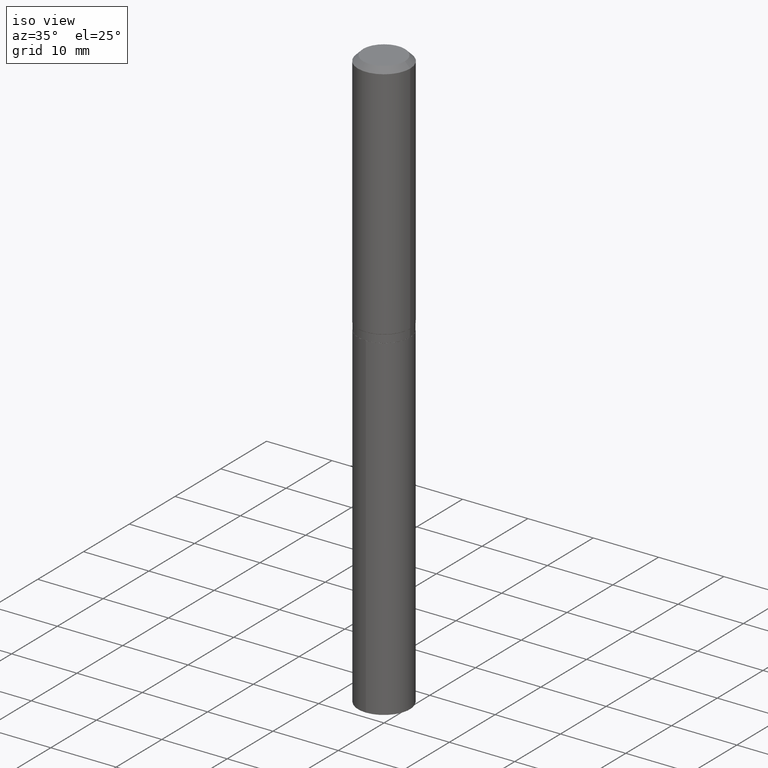
[diagram: clean part render]
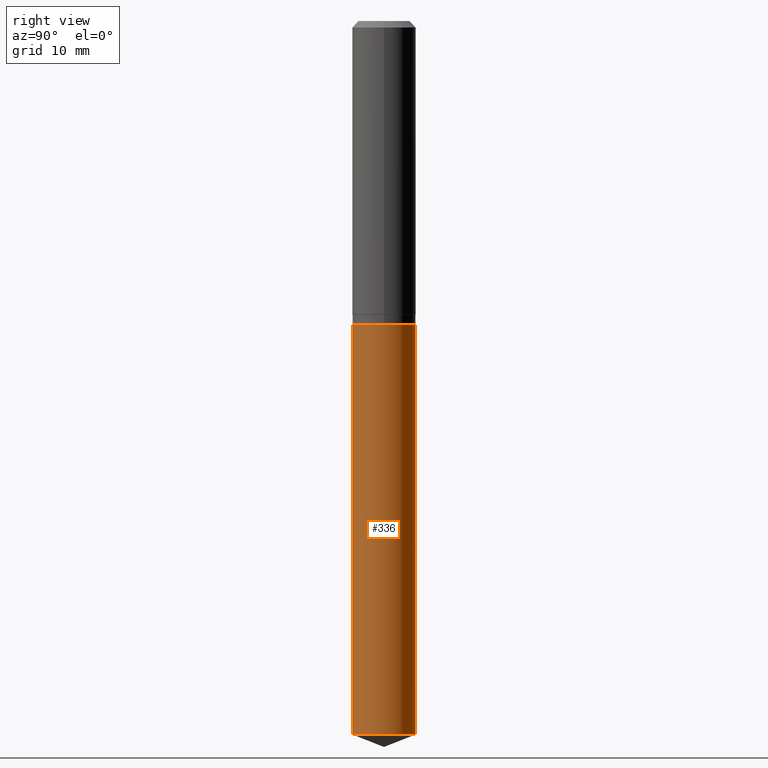
[diagram: tour spotlight — one face highlighted and labeled with its STEP entity id]
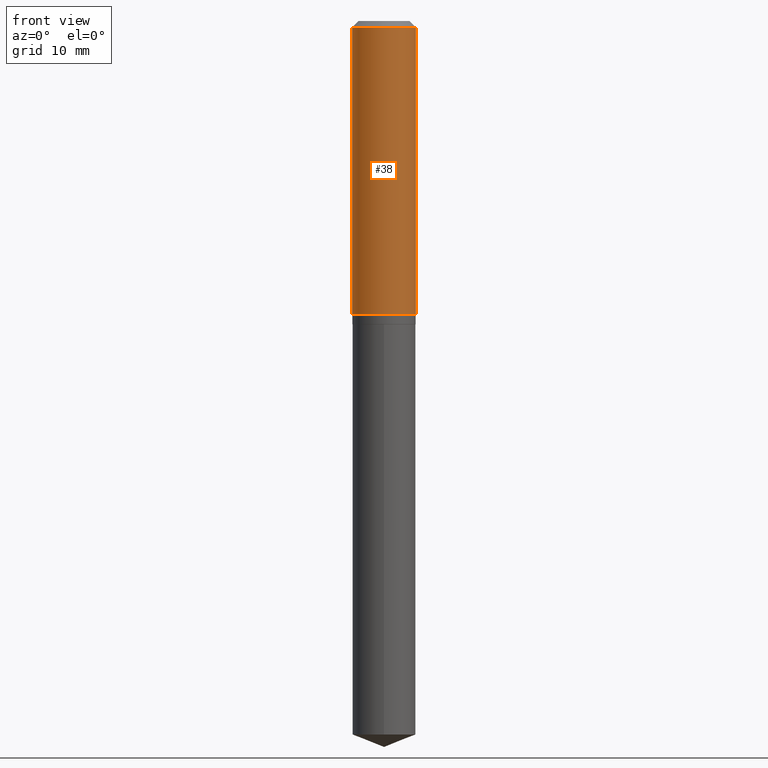
[diagram: tour spotlight — one face highlighted and labeled with its STEP entity id]
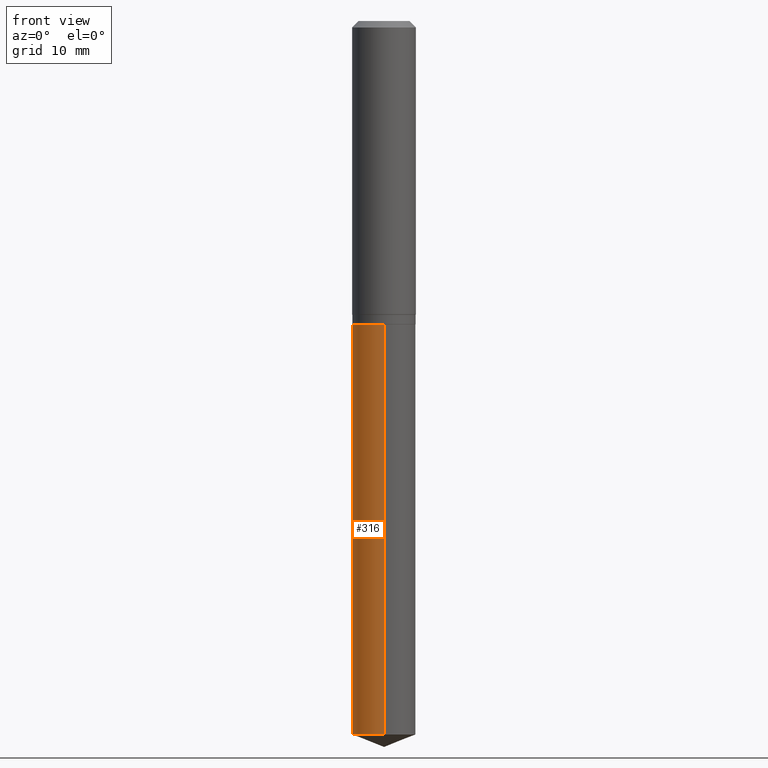
[diagram: tour spotlight — one face highlighted and labeled with its STEP entity id]
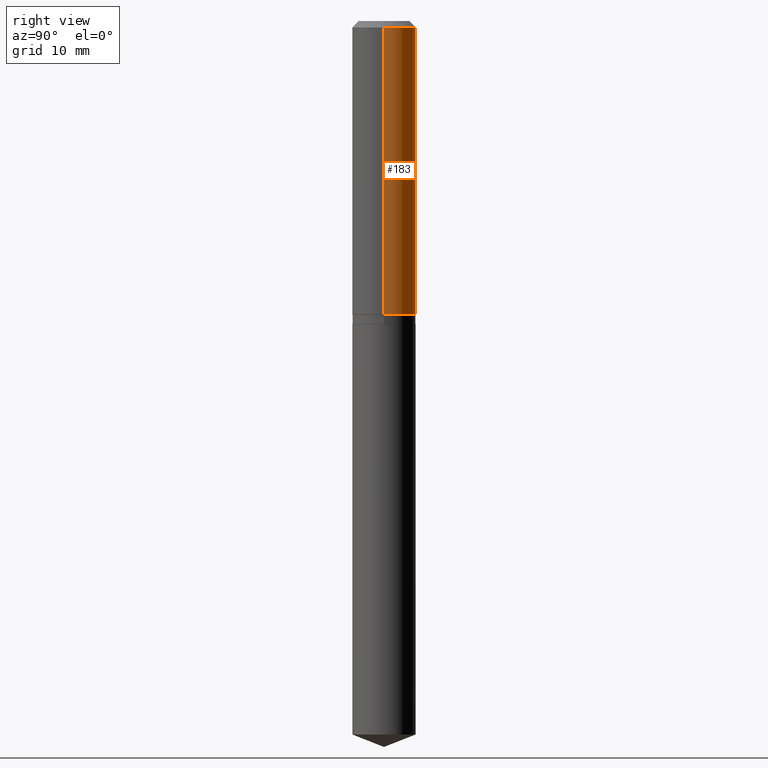
[diagram: tour spotlight — one face highlighted and labeled with its STEP entity id]
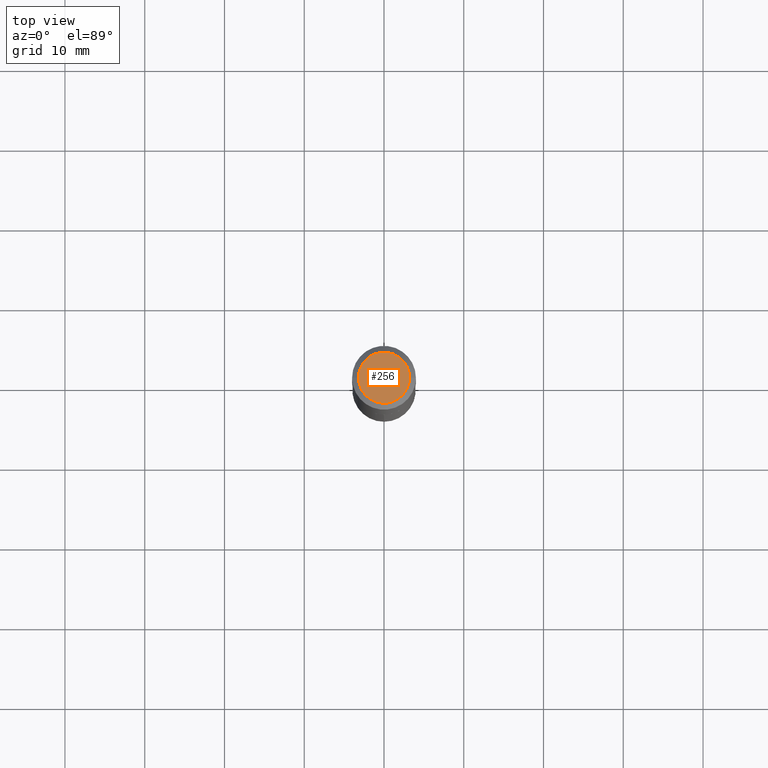
[diagram: tour spotlight — one face highlighted and labeled with its STEP entity id]
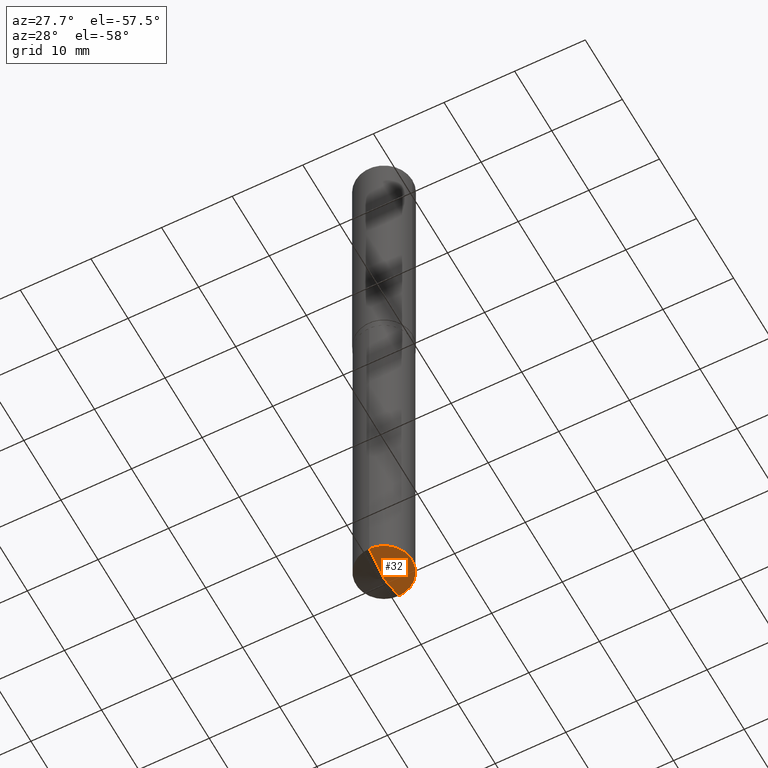
[diagram: tour spotlight — one face highlighted and labeled with its STEP entity id]
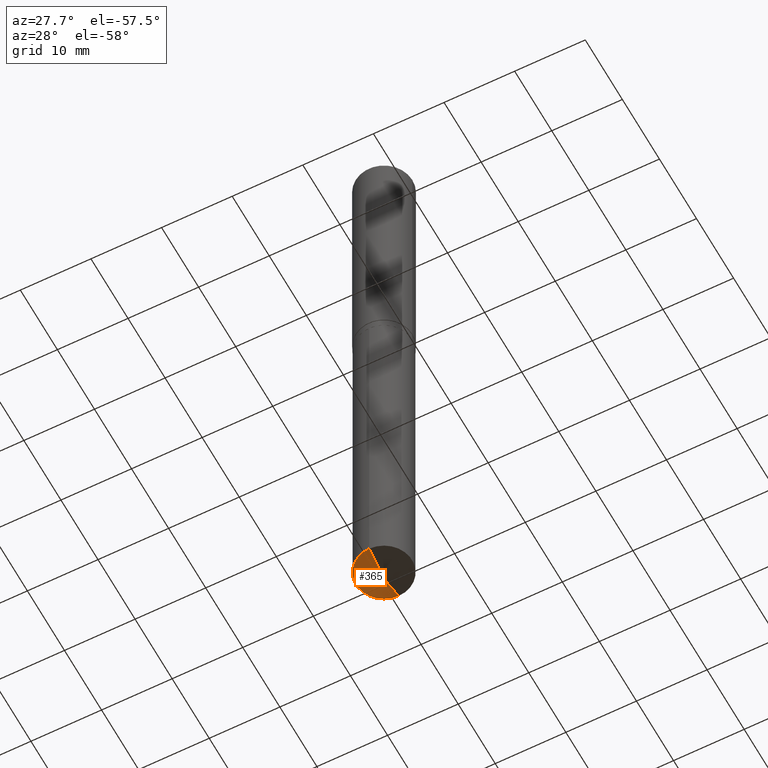
[diagram: tour spotlight — one face highlighted and labeled with its STEP entity id]
A machine part: a face-by-face anatomy tour. The part has 17 B-rep faces; the first image is the clean iso view, then the 7 largest visible faces are spotlighted one at a time (largest first), each with its STEP entity span.

Face 1 — right view, entity #336. In plain terms, the highlighted cylindrical surface (edge-blend (fillet) strip) has radius 3.9688 mm, axis along (-0, 0, 1).
Definition (entity closure, byte-faithful):
#4 = DIRECTION ( 'NONE',  ( -2.445483652818804664E-29, 3.491460077618715012E-15, 1.000000000000000000 ) ) ;
#18 = EDGE_LOOP ( 'NONE', ( #482, #49, #147, #128 ) ) ;
#20 = CARTESIAN_POINT ( 'NONE',  ( 3.659399521575438742E-29, -5.224652675444883351E-15, -1.496400000000000174 ) ) ;
#26 = DIRECTION ( 'NONE',  ( -6.982962677686265133E-15, -1.000000000000000000, 3.496765431890256920E-15 ) ) ;
#37 = AXIS2_PLACEMENT_3D ( 'NONE', #20, #285, #166 ) ;
#39 = CARTESIAN_POINT ( 'NONE',  ( 3.659399521575438742E-29, -5.224652675444883351E-15, -1.496400000000000174 ) ) ;
#48 = FACE_OUTER_BOUND ( 'NONE', #18, .T. ) ;
#49 = ORIENTED_EDGE ( 'NONE', *, *, #263, .T. ) ;
#51 = CARTESIAN_POINT ( 'NONE',  ( -1.091087918388442491E-15, -0.1562500000000052180, -1.496399999999999730 ) ) ;
#104 = AXIS2_PLACEMENT_3D ( 'NONE', #39, #4, #149 ) ;
#128 = ORIENTED_EDGE ( 'NONE', *, *, #278, .F. ) ;
#147 = ORIENTED_EDGE ( 'NONE', *, *, #170, .F. ) ;
#149 = DIRECTION ( 'NONE',  ( -6.982962677686265133E-15, -1.000000000000000000, 3.496765431890256920E-15 ) ) ;
#166 = DIRECTION ( 'NONE',  ( -6.982962677686265133E-15, -1.000000000000000000, 3.496765431890256920E-15 ) ) ;
#170 = EDGE_CURVE ( 'NONE', #245, #193, #249, .T. ) ;
#190 = DIRECTION ( 'NONE',  ( -2.445483652818804384E-29, 3.491460077618715012E-15, 1.000000000000000000 ) ) ;
#193 = VERTEX_POINT ( 'NONE', #344 ) ;
#196 = CYLINDRICAL_SURFACE ( 'NONE', #37, 0.1562500000000000000 ) ;
#200 = LINE ( 'NONE', #51, #281 ) ;
#209 = CARTESIAN_POINT ( 'NONE',  ( 8.611629832048654123E-29, -1.229503910156575525E-14, -3.521451488185165957 ) ) ;
#223 = DIRECTION ( 'NONE',  ( -2.445483652818804664E-29, 3.491460077618715012E-15, 1.000000000000000000 ) ) ;
#231 = CARTESIAN_POINT ( 'NONE',  ( 1.110223024625193025E-15, 0.1562499999999947820, -1.496400000000000841 ) ) ;
#245 = VERTEX_POINT ( 'NONE', #303 ) ;
#249 = CIRCLE ( 'NONE', #104, 0.1562500000000000000 ) ;
#253 = VERTEX_POINT ( 'NONE', #374 ) ;
#263 = EDGE_CURVE ( 'NONE', #333, #193, #377, .T. ) ;
#273 = DIRECTION ( 'NONE',  ( -2.445483652818804384E-29, 3.491460077618715012E-15, 1.000000000000000000 ) ) ;
#278 = EDGE_CURVE ( 'NONE', #253, #245, #200, .T. ) ;
#281 = VECTOR ( 'NONE', #273, 39.37007874015748143 ) ;
#285 = DIRECTION ( 'NONE',  ( -2.445483652818804664E-29, 3.491460077618715012E-15, 1.000000000000000000 ) ) ;
#303 = CARTESIAN_POINT ( 'NONE',  ( -1.091087918388442491E-15, -0.1562500000000052180, -1.496399999999999730 ) ) ;
#321 = VECTOR ( 'NONE', #190, 39.37007874015748143 ) ;
#333 = VERTEX_POINT ( 'NONE', #354 ) ;
#336 = ADVANCED_FACE ( 'NONE', ( #48 ), #196, .T. ) ;
#344 = CARTESIAN_POINT ( 'NONE',  ( 1.110223024625242723E-15, 0.1562499999999947820, -1.496400000000000841 ) ) ;
#354 = CARTESIAN_POINT ( 'NONE',  ( 1.110223024625242329E-15, 0.1562499999999876765, -3.521451488185166401 ) ) ;
#374 = CARTESIAN_POINT ( 'NONE',  ( -1.091087918388392596E-15, -0.1562500000000122402, -3.521451488185165513 ) ) ;
#377 = LINE ( 'NONE', #231, #321 ) ;
#406 = AXIS2_PLACEMENT_3D ( 'NONE', #209, #223, #26 ) ;
#422 = CIRCLE ( 'NONE', #406, 0.1562500000000000000 ) ;
#482 = ORIENTED_EDGE ( 'NONE', *, *, #489, .T. ) ;
#489 = EDGE_CURVE ( 'NONE', #253, #333, #422, .T. ) ;

Face 2 — front view, entity #38. In plain terms, the highlighted cylindrical surface (edge-blend (fillet) strip) has radius 4.0005 mm, axis along (-0, 0, 1).
Definition (entity closure, byte-faithful):
#8 = DIRECTION ( 'NONE',  ( -2.445468806185136597E-29, 3.491481338843145583E-15, 1.000000000000000000 ) ) ;
#21 = AXIS2_PLACEMENT_3D ( 'NONE', #410, #404, #137 ) ;
#22 = ORIENTED_EDGE ( 'NONE', *, *, #415, .F. ) ;
#36 = CIRCLE ( 'NONE', #180, 0.1575000000000000011 ) ;
#38 = ADVANCED_FACE ( 'NONE', ( #291 ), #255, .T. ) ;
#55 = CARTESIAN_POINT ( 'NONE',  ( 7.703226739483226971E-31, -1.099816621735597538E-16, -0.03150000000000019451 ) ) ;
#75 = CARTESIAN_POINT ( 'NONE',  ( 0.1575000000000000844, -1.099816621735587677E-15, 7.679978421878603638E-30 ) ) ;
#78 = VECTOR ( 'NONE', #484, 39.37007874015748143 ) ;
#85 = CARTESIAN_POINT ( 'NONE',  ( -0.1575000000000001676, -3.936036447621888679E-15, -1.447849999999999637 ) ) ;
#107 = CARTESIAN_POINT ( 'NONE',  ( 0.1575000000000001676, -6.154957878179636918E-15, -1.447849999999999637 ) ) ;
#111 = CIRCLE ( 'NONE', #444, 0.1575000000000001676 ) ;
#115 = EDGE_CURVE ( 'NONE', #434, #284, #217, .T. ) ;
#137 = DIRECTION ( 'NONE',  ( 1.000000000000000000, -6.982962677686267499E-15, 4.876176775795936353E-29 ) ) ;
#150 = VECTOR ( 'NONE', #418, 39.37007874015748143 ) ;
#151 = EDGE_CURVE ( 'NONE', #386, #434, #111, .T. ) ;
#157 = DIRECTION ( 'NONE',  ( 1.000000000000000000, -6.982962677686267499E-15, 0.000000000000000000 ) ) ;
#172 = VERTEX_POINT ( 'NONE', #262 ) ;
#180 = AXIS2_PLACEMENT_3D ( 'NONE', #55, #315, #360 ) ;
#217 = LINE ( 'NONE', #75, #150 ) ;
#233 = CARTESIAN_POINT ( 'NONE',  ( 0.1575000000000000011, -1.209798283909146741E-15, -0.03150000000000019451 ) ) ;
#255 = CYLINDRICAL_SURFACE ( 'NONE', #21, 0.1575000000000000844 ) ;
#262 = CARTESIAN_POINT ( 'NONE',  ( -0.1575000000000000011, -1.463456650486645070E-15, -0.03150000000000019451 ) ) ;
#284 = VERTEX_POINT ( 'NONE', #233 ) ;
#291 = FACE_OUTER_BOUND ( 'NONE', #473, .T. ) ;
#315 = DIRECTION ( 'NONE',  ( -2.445468806185136597E-29, 3.491481338843145583E-15, 1.000000000000000000 ) ) ;
#320 = ORIENTED_EDGE ( 'NONE', *, *, #331, .F. ) ;
#331 = EDGE_CURVE ( 'NONE', #172, #284, #36, .T. ) ;
#332 = CARTESIAN_POINT ( 'NONE',  ( -0.1575000000000000844, 1.119104808822158392E-15, -7.747322767151481189E-30 ) ) ;
#342 = CARTESIAN_POINT ( 'NONE',  ( 3.540672011035148907E-29, -5.055141256444047071E-15, -1.447849999999999637 ) ) ;
#360 = DIRECTION ( 'NONE',  ( 1.000000000000000000, -6.982962677686265922E-15, 0.000000000000000000 ) ) ;
#386 = VERTEX_POINT ( 'NONE', #85 ) ;
#395 = ORIENTED_EDGE ( 'NONE', *, *, #115, .T. ) ;
#404 = DIRECTION ( 'NONE',  ( -2.445468806185136597E-29, 3.491481338843145583E-15, 1.000000000000000000 ) ) ;
#410 = CARTESIAN_POINT ( 'NONE',  ( 0.000000000000000000, 0.000000000000000000, 0.000000000000000000 ) ) ;
#415 = EDGE_CURVE ( 'NONE', #386, #172, #468, .T. ) ;
#418 = DIRECTION ( 'NONE',  ( -2.445468806185136877E-29, 3.491481338843145188E-15, 1.000000000000000000 ) ) ;
#428 = ORIENTED_EDGE ( 'NONE', *, *, #151, .T. ) ;
#434 = VERTEX_POINT ( 'NONE', #107 ) ;
#444 = AXIS2_PLACEMENT_3D ( 'NONE', #342, #8, #157 ) ;
#468 = LINE ( 'NONE', #332, #78 ) ;
#473 = EDGE_LOOP ( 'NONE', ( #22, #428, #395, #320 ) ) ;
#484 = DIRECTION ( 'NONE',  ( -2.445468806185136877E-29, 3.491481338843145188E-15, 1.000000000000000000 ) ) ;

Face 3 — front view, entity #316. In plain terms, the highlighted cylindrical surface (edge-blend (fillet) strip) has radius 3.9688 mm, axis along (-0, 0, 1).
Definition (entity closure, byte-faithful):
#23 = DIRECTION ( 'NONE',  ( -2.445483652818804664E-29, 3.491460077618715012E-15, 1.000000000000000000 ) ) ;
#27 = EDGE_LOOP ( 'NONE', ( #402, #465, #400, #398 ) ) ;
#30 = AXIS2_PLACEMENT_3D ( 'NONE', #318, #23, #168 ) ;
#51 = CARTESIAN_POINT ( 'NONE',  ( -1.091087918388442491E-15, -0.1562500000000052180, -1.496399999999999730 ) ) ;
#54 = DIRECTION ( 'NONE',  ( -2.445483652818804664E-29, 3.491460077618715012E-15, 1.000000000000000000 ) ) ;
#56 = AXIS2_PLACEMENT_3D ( 'NONE', #130, #54, #433 ) ;
#93 = DIRECTION ( 'NONE',  ( -2.445483652818804664E-29, 3.491460077618715012E-15, 1.000000000000000000 ) ) ;
#130 = CARTESIAN_POINT ( 'NONE',  ( 3.659399521575438742E-29, -5.224652675444883351E-15, -1.496400000000000174 ) ) ;
#159 = CYLINDRICAL_SURFACE ( 'NONE', #56, 0.1562500000000000000 ) ;
#168 = DIRECTION ( 'NONE',  ( -6.982962677686265133E-15, -1.000000000000000000, 3.496765431890256920E-15 ) ) ;
#174 = CIRCLE ( 'NONE', #299, 0.1562500000000000000 ) ;
#190 = DIRECTION ( 'NONE',  ( -2.445483652818804384E-29, 3.491460077618715012E-15, 1.000000000000000000 ) ) ;
#193 = VERTEX_POINT ( 'NONE', #344 ) ;
#200 = LINE ( 'NONE', #51, #281 ) ;
#231 = CARTESIAN_POINT ( 'NONE',  ( 1.110223024625193025E-15, 0.1562499999999947820, -1.496400000000000841 ) ) ;
#245 = VERTEX_POINT ( 'NONE', #303 ) ;
#246 = DIRECTION ( 'NONE',  ( -6.982962677686265133E-15, -1.000000000000000000, 3.496765431890256920E-15 ) ) ;
#253 = VERTEX_POINT ( 'NONE', #374 ) ;
#258 = CIRCLE ( 'NONE', #30, 0.1562500000000000000 ) ;
#263 = EDGE_CURVE ( 'NONE', #333, #193, #377, .T. ) ;
#273 = DIRECTION ( 'NONE',  ( -2.445483652818804384E-29, 3.491460077618715012E-15, 1.000000000000000000 ) ) ;
#278 = EDGE_CURVE ( 'NONE', #253, #245, #200, .T. ) ;
#281 = VECTOR ( 'NONE', #273, 39.37007874015748143 ) ;
#299 = AXIS2_PLACEMENT_3D ( 'NONE', #435, #93, #246 ) ;
#303 = CARTESIAN_POINT ( 'NONE',  ( -1.091087918388442491E-15, -0.1562500000000052180, -1.496399999999999730 ) ) ;
#316 = ADVANCED_FACE ( 'NONE', ( #385 ), #159, .T. ) ;
#318 = CARTESIAN_POINT ( 'NONE',  ( 3.659399521575438742E-29, -5.224652675444883351E-15, -1.496400000000000174 ) ) ;
#321 = VECTOR ( 'NONE', #190, 39.37007874015748143 ) ;
#333 = VERTEX_POINT ( 'NONE', #354 ) ;
#344 = CARTESIAN_POINT ( 'NONE',  ( 1.110223024625242723E-15, 0.1562499999999947820, -1.496400000000000841 ) ) ;
#354 = CARTESIAN_POINT ( 'NONE',  ( 1.110223024625242329E-15, 0.1562499999999876765, -3.521451488185166401 ) ) ;
#374 = CARTESIAN_POINT ( 'NONE',  ( -1.091087918388392596E-15, -0.1562500000000122402, -3.521451488185165513 ) ) ;
#377 = LINE ( 'NONE', #231, #321 ) ;
#383 = EDGE_CURVE ( 'NONE', #333, #253, #174, .T. ) ;
#385 = FACE_OUTER_BOUND ( 'NONE', #27, .T. ) ;
#394 = EDGE_CURVE ( 'NONE', #193, #245, #258, .T. ) ;
#398 = ORIENTED_EDGE ( 'NONE', *, *, #394, .F. ) ;
#400 = ORIENTED_EDGE ( 'NONE', *, *, #278, .T. ) ;
#402 = ORIENTED_EDGE ( 'NONE', *, *, #263, .F. ) ;
#433 = DIRECTION ( 'NONE',  ( -6.982962677686265133E-15, -1.000000000000000000, 3.496765431890256920E-15 ) ) ;
#435 = CARTESIAN_POINT ( 'NONE',  ( 8.611629832048654123E-29, -1.229503910156575525E-14, -3.521451488185165957 ) ) ;
#465 = ORIENTED_EDGE ( 'NONE', *, *, #383, .T. ) ;

Face 4 — right view, entity #183. In plain terms, the highlighted cylindrical surface (edge-blend (fillet) strip) has radius 4.0005 mm, axis along (-0, 0, 1).
Definition (entity closure, byte-faithful):
#10 = DIRECTION ( 'NONE',  ( 1.000000000000000000, -6.982962677686265922E-15, 0.000000000000000000 ) ) ;
#16 = EDGE_CURVE ( 'NONE', #434, #386, #478, .T. ) ;
#42 = CYLINDRICAL_SURFACE ( 'NONE', #438, 0.1575000000000000844 ) ;
#45 = DIRECTION ( 'NONE',  ( -2.445468806185136597E-29, 3.491481338843145583E-15, 1.000000000000000000 ) ) ;
#61 = DIRECTION ( 'NONE',  ( -2.445468806185136597E-29, 3.491481338843145583E-15, 1.000000000000000000 ) ) ;
#75 = CARTESIAN_POINT ( 'NONE',  ( 0.1575000000000000844, -1.099816621735587677E-15, 7.679978421878603638E-30 ) ) ;
#78 = VECTOR ( 'NONE', #484, 39.37007874015748143 ) ;
#85 = CARTESIAN_POINT ( 'NONE',  ( -0.1575000000000001676, -3.936036447621888679E-15, -1.447849999999999637 ) ) ;
#86 = ORIENTED_EDGE ( 'NONE', *, *, #415, .T. ) ;
#102 = ORIENTED_EDGE ( 'NONE', *, *, #330, .F. ) ;
#107 = CARTESIAN_POINT ( 'NONE',  ( 0.1575000000000001676, -6.154957878179636918E-15, -1.447849999999999637 ) ) ;
#115 = EDGE_CURVE ( 'NONE', #434, #284, #217, .T. ) ;
#116 = FACE_OUTER_BOUND ( 'NONE', #162, .T. ) ;
#150 = VECTOR ( 'NONE', #418, 39.37007874015748143 ) ;
#155 = DIRECTION ( 'NONE',  ( 1.000000000000000000, -6.982962677686267499E-15, 4.876176775795936353E-29 ) ) ;
#162 = EDGE_LOOP ( 'NONE', ( #446, #86, #102, #207 ) ) ;
#172 = VERTEX_POINT ( 'NONE', #262 ) ;
#183 = ADVANCED_FACE ( 'NONE', ( #116 ), #42, .T. ) ;
#195 = CARTESIAN_POINT ( 'NONE',  ( 7.703226739483226971E-31, -1.099816621735597538E-16, -0.03150000000000019451 ) ) ;
#207 = ORIENTED_EDGE ( 'NONE', *, *, #115, .F. ) ;
#217 = LINE ( 'NONE', #75, #150 ) ;
#233 = CARTESIAN_POINT ( 'NONE',  ( 0.1575000000000000011, -1.209798283909146741E-15, -0.03150000000000019451 ) ) ;
#261 = CARTESIAN_POINT ( 'NONE',  ( 3.540672011035148907E-29, -5.055141256444047071E-15, -1.447849999999999637 ) ) ;
#262 = CARTESIAN_POINT ( 'NONE',  ( -0.1575000000000000011, -1.463456650486645070E-15, -0.03150000000000019451 ) ) ;
#279 = DIRECTION ( 'NONE',  ( -2.445468806185136597E-29, 3.491481338843145583E-15, 1.000000000000000000 ) ) ;
#284 = VERTEX_POINT ( 'NONE', #233 ) ;
#327 = DIRECTION ( 'NONE',  ( 1.000000000000000000, -6.982962677686267499E-15, 0.000000000000000000 ) ) ;
#330 = EDGE_CURVE ( 'NONE', #284, #172, #486, .T. ) ;
#332 = CARTESIAN_POINT ( 'NONE',  ( -0.1575000000000000844, 1.119104808822158392E-15, -7.747322767151481189E-30 ) ) ;
#382 = CARTESIAN_POINT ( 'NONE',  ( 0.000000000000000000, 0.000000000000000000, 0.000000000000000000 ) ) ;
#386 = VERTEX_POINT ( 'NONE', #85 ) ;
#399 = AXIS2_PLACEMENT_3D ( 'NONE', #195, #279, #10 ) ;
#415 = EDGE_CURVE ( 'NONE', #386, #172, #468, .T. ) ;
#418 = DIRECTION ( 'NONE',  ( -2.445468806185136877E-29, 3.491481338843145188E-15, 1.000000000000000000 ) ) ;
#434 = VERTEX_POINT ( 'NONE', #107 ) ;
#438 = AXIS2_PLACEMENT_3D ( 'NONE', #382, #45, #155 ) ;
#446 = ORIENTED_EDGE ( 'NONE', *, *, #16, .T. ) ;
#451 = AXIS2_PLACEMENT_3D ( 'NONE', #261, #61, #327 ) ;
#468 = LINE ( 'NONE', #332, #78 ) ;
#478 = CIRCLE ( 'NONE', #451, 0.1575000000000001676 ) ;
#484 = DIRECTION ( 'NONE',  ( -2.445468806185136877E-29, 3.491481338843145188E-15, 1.000000000000000000 ) ) ;
#486 = CIRCLE ( 'NONE', #399, 0.1575000000000000011 ) ;

Face 5 — top view, entity #256. In plain terms, the highlighted planar face has unit normal (0, -0, -1).
Definition (entity closure, byte-faithful):
#62 = ORIENTED_EDGE ( 'NONE', *, *, #450, .T. ) ;
#77 = CARTESIAN_POINT ( 'NONE',  ( 0.1260000000000000009, -1.027466422270894443E-15, 3.860086710919128072E-18 ) ) ;
#79 = PLANE ( 'NONE',  #129 ) ;
#90 = CIRCLE ( 'NONE', #229, 0.1260000000000000009 ) ;
#100 = VERTEX_POINT ( 'NONE', #266 ) ;
#113 = CARTESIAN_POINT ( 'NONE',  ( -4.719860820353100843E-47, 6.738710358733633822E-33, 1.930043355456229866E-18 ) ) ;
#125 = VERTEX_POINT ( 'NONE', #77 ) ;
#129 = AXIS2_PLACEMENT_3D ( 'NONE', #113, #416, #225 ) ;
#135 = DIRECTION ( 'NONE',  ( -2.445468806185136597E-29, 3.491481338843145583E-15, 1.000000000000000000 ) ) ;
#185 = EDGE_CURVE ( 'NONE', #100, #125, #218, .T. ) ;
#218 = CIRCLE ( 'NONE', #379, 0.1260000000000000009 ) ;
#225 = DIRECTION ( 'NONE',  ( -1.000000000000000000, 6.982962677686265922E-15, -4.876176775795935793E-29 ) ) ;
#229 = AXIS2_PLACEMENT_3D ( 'NONE', #326, #135, #254 ) ;
#254 = DIRECTION ( 'NONE',  ( 1.000000000000000000, -6.982962677686265922E-15, 4.876281427513067258E-29 ) ) ;
#256 = ADVANCED_FACE ( 'NONE', ( #340 ), #79, .F. ) ;
#266 = CARTESIAN_POINT ( 'NONE',  ( -0.1260000000000000009, 9.348441284752484904E-16, 3.860086710906114178E-18 ) ) ;
#306 = CARTESIAN_POINT ( 'NONE',  ( -9.439721640706201686E-47, 1.347742071746726764E-32, 3.860086710912459732E-18 ) ) ;
#326 = CARTESIAN_POINT ( 'NONE',  ( -9.439721640706201686E-47, 1.347742071746726764E-32, 3.860086710912459732E-18 ) ) ;
#340 = FACE_OUTER_BOUND ( 'NONE', #357, .T. ) ;
#357 = EDGE_LOOP ( 'NONE', ( #436, #62 ) ) ;
#379 = AXIS2_PLACEMENT_3D ( 'NONE', #306, #411, #448 ) ;
#411 = DIRECTION ( 'NONE',  ( -2.445468806185136597E-29, 3.491481338843145583E-15, 1.000000000000000000 ) ) ;
#416 = DIRECTION ( 'NONE',  ( 2.438088387897960049E-29, -3.491481338843145188E-15, -1.000000000000000000 ) ) ;
#436 = ORIENTED_EDGE ( 'NONE', *, *, #185, .T. ) ;
#448 = DIRECTION ( 'NONE',  ( 1.000000000000000000, -6.982962677686265922E-15, 4.876281427513067258E-29 ) ) ;
#450 = EDGE_CURVE ( 'NONE', #125, #100, #90, .T. ) ;

Face 6 — auxiliary view, entity #32. In plain terms, the highlighted conical surface has half-angle 68.5 deg.
Definition (entity closure, byte-faithful):
#14 = EDGE_CURVE ( 'NONE', #363, #253, #29, .T. ) ;
#25 = ORIENTED_EDGE ( 'NONE', *, *, #163, .T. ) ;
#26 = DIRECTION ( 'NONE',  ( -6.982962677686265133E-15, -1.000000000000000000, 3.496765431890256920E-15 ) ) ;
#29 = LINE ( 'NONE', #70, #173 ) ;
#32 = ADVANCED_FACE ( 'NONE', ( #175 ), #469, .T. ) ;
#34 = ORIENTED_EDGE ( 'NONE', *, *, #14, .F. ) ;
#46 = CARTESIAN_POINT ( 'NONE',  ( 8.762168317674783458E-29, -1.250990145810785612E-14, -3.583000000000000185 ) ) ;
#70 = CARTESIAN_POINT ( 'NONE',  ( 8.762123495044533825E-29, -1.250996508870033127E-14, -3.583000000000000185 ) ) ;
#120 = AXIS2_PLACEMENT_3D ( 'NONE', #259, #477, #480 ) ;
#163 = EDGE_CURVE ( 'NONE', #363, #333, #339, .T. ) ;
#173 = VECTOR ( 'NONE', #215, 39.37007874015748143 ) ;
#175 = FACE_OUTER_BOUND ( 'NONE', #392, .T. ) ;
#209 = CARTESIAN_POINT ( 'NONE',  ( 8.611629832048654123E-29, -1.229503910156575525E-14, -3.521451488185165957 ) ) ;
#215 = DIRECTION ( 'NONE',  ( -6.497071151882118258E-15, -0.9304175679820244627, 0.3665012267242974686 ) ) ;
#223 = DIRECTION ( 'NONE',  ( -2.445483652818804664E-29, 3.491460077618715012E-15, 1.000000000000000000 ) ) ;
#253 = VERTEX_POINT ( 'NONE', #374 ) ;
#259 = CARTESIAN_POINT ( 'NONE',  ( -8.751673825769712260E-28, 1.249491249005610537E-13, 35.78707874015748303 ) ) ;
#329 = ORIENTED_EDGE ( 'NONE', *, *, #489, .F. ) ;
#333 = VERTEX_POINT ( 'NONE', #354 ) ;
#339 = LINE ( 'NONE', #46, #405 ) ;
#348 = CARTESIAN_POINT ( 'NONE',  ( 8.762167928049776641E-29, -1.250990145810785612E-14, -3.583000000000000185 ) ) ;
#354 = CARTESIAN_POINT ( 'NONE',  ( 1.110223024625242329E-15, 0.1562499999999876765, -3.521451488185166401 ) ) ;
#363 = VERTEX_POINT ( 'NONE', #348 ) ;
#374 = CARTESIAN_POINT ( 'NONE',  ( -1.091087918388392596E-15, -0.1562500000000122402, -3.521451488185165513 ) ) ;
#392 = EDGE_LOOP ( 'NONE', ( #34, #25, #329 ) ) ;
#405 = VECTOR ( 'NONE', #455, 39.37007874015748143 ) ;
#406 = AXIS2_PLACEMENT_3D ( 'NONE', #209, #223, #26 ) ;
#422 = CIRCLE ( 'NONE', #406, 0.1562500000000000000 ) ;
#455 = DIRECTION ( 'NONE',  ( 6.611014441532066589E-15, 0.9304175679820270162, 0.3665012267242909183 ) ) ;
#469 = CONICAL_SURFACE ( 'NONE', #120, 99.94676754583984746, 1.195550537616119069 ) ;
#477 = DIRECTION ( 'NONE',  ( -2.445483652818804664E-29, 3.491460077618715012E-15, 1.000000000000000000 ) ) ;
#480 = DIRECTION ( 'NONE',  ( -6.982962677686265922E-15, -1.000000000000000000, 3.498627837350008561E-15 ) ) ;
#489 = EDGE_CURVE ( 'NONE', #253, #333, #422, .T. ) ;

Face 7 — auxiliary view, entity #365. In plain terms, the highlighted conical surface has half-angle 68.5 deg.
Definition (entity closure, byte-faithful):
#12 = ORIENTED_EDGE ( 'NONE', *, *, #163, .F. ) ;
#13 = CARTESIAN_POINT ( 'NONE',  ( -8.751673825769712260E-28, 1.249491249005610537E-13, 35.78707874015748303 ) ) ;
#14 = EDGE_CURVE ( 'NONE', #363, #253, #29, .T. ) ;
#29 = LINE ( 'NONE', #70, #173 ) ;
#46 = CARTESIAN_POINT ( 'NONE',  ( 8.762168317674783458E-29, -1.250990145810785612E-14, -3.583000000000000185 ) ) ;
#70 = CARTESIAN_POINT ( 'NONE',  ( 8.762123495044533825E-29, -1.250996508870033127E-14, -3.583000000000000185 ) ) ;
#93 = DIRECTION ( 'NONE',  ( -2.445483652818804664E-29, 3.491460077618715012E-15, 1.000000000000000000 ) ) ;
#121 = CONICAL_SURFACE ( 'NONE', #187, 99.94676754583984746, 1.195550537616119069 ) ;
#124 = DIRECTION ( 'NONE',  ( -2.445483652818804664E-29, 3.491460077618715012E-15, 1.000000000000000000 ) ) ;
#131 = ORIENTED_EDGE ( 'NONE', *, *, #14, .T. ) ;
#140 = EDGE_LOOP ( 'NONE', ( #12, #131, #292 ) ) ;
#163 = EDGE_CURVE ( 'NONE', #363, #333, #339, .T. ) ;
#173 = VECTOR ( 'NONE', #215, 39.37007874015748143 ) ;
#174 = CIRCLE ( 'NONE', #299, 0.1562500000000000000 ) ;
#187 = AXIS2_PLACEMENT_3D ( 'NONE', #13, #124, #323 ) ;
#215 = DIRECTION ( 'NONE',  ( -6.497071151882118258E-15, -0.9304175679820244627, 0.3665012267242974686 ) ) ;
#246 = DIRECTION ( 'NONE',  ( -6.982962677686265133E-15, -1.000000000000000000, 3.496765431890256920E-15 ) ) ;
#253 = VERTEX_POINT ( 'NONE', #374 ) ;
#292 = ORIENTED_EDGE ( 'NONE', *, *, #383, .F. ) ;
#299 = AXIS2_PLACEMENT_3D ( 'NONE', #435, #93, #246 ) ;
#323 = DIRECTION ( 'NONE',  ( -6.982962677686265922E-15, -1.000000000000000000, 3.498627837350008561E-15 ) ) ;
#333 = VERTEX_POINT ( 'NONE', #354 ) ;
#339 = LINE ( 'NONE', #46, #405 ) ;
#348 = CARTESIAN_POINT ( 'NONE',  ( 8.762167928049776641E-29, -1.250990145810785612E-14, -3.583000000000000185 ) ) ;
#354 = CARTESIAN_POINT ( 'NONE',  ( 1.110223024625242329E-15, 0.1562499999999876765, -3.521451488185166401 ) ) ;
#363 = VERTEX_POINT ( 'NONE', #348 ) ;
#365 = ADVANCED_FACE ( 'NONE', ( #393 ), #121, .T. ) ;
#374 = CARTESIAN_POINT ( 'NONE',  ( -1.091087918388392596E-15, -0.1562500000000122402, -3.521451488185165513 ) ) ;
#383 = EDGE_CURVE ( 'NONE', #333, #253, #174, .T. ) ;
#393 = FACE_OUTER_BOUND ( 'NONE', #140, .T. ) ;
#405 = VECTOR ( 'NONE', #455, 39.37007874015748143 ) ;
#435 = CARTESIAN_POINT ( 'NONE',  ( 8.611629832048654123E-29, -1.229503910156575525E-14, -3.521451488185165957 ) ) ;
#455 = DIRECTION ( 'NONE',  ( 6.611014441532066589E-15, 0.9304175679820270162, 0.3665012267242909183 ) ) ;